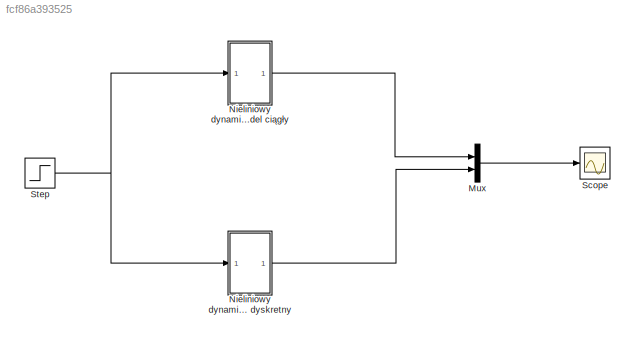
MODEL slx_fcf86a393525
KIND model
BLOCK [Mux] Mux
  DisplayOption = bar
  Inputs = 2
  Ports = [2, 1]
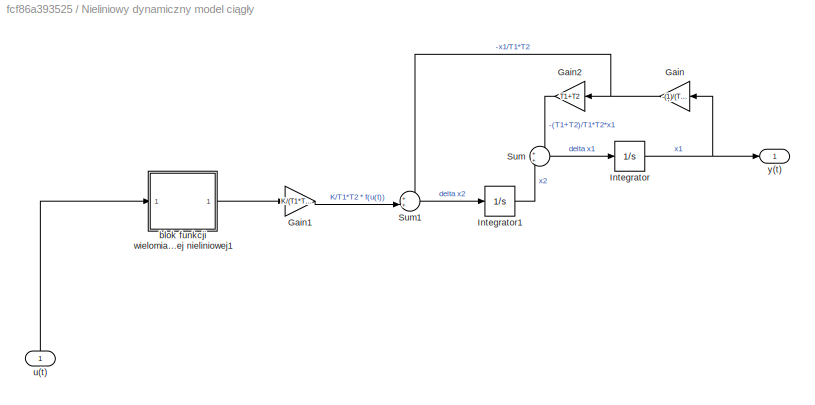
BLOCK [SubSystem] Nieliniowy dynamiczny model ciągły
  Ports = [1, 1]
  RequestExecContextInheritance = off
BLOCK [Gain] Nieliniowy dynamiczny model ciągły/Gain
  Gain = -(1)/(T1*T2)
  OutDataTypeStr = Inherit: Inherit via internal rule
  ParamDataTypeStr = Inherit: Inherit via internal rule
  SaturateOnIntegerOverflow = off
BLOCK [Gain] Nieliniowy dynamiczny model ciągły/Gain1
  Gain = K/(T1*T2)
  OutDataTypeStr = Inherit: Inherit via internal rule
  ParamDataTypeStr = Inherit: Inherit via internal rule
  SaturateOnIntegerOverflow = off
BLOCK [Gain] Nieliniowy dynamiczny model ciągły/Gain2
  Gain = T1+T2
  OutDataTypeStr = Inherit: Inherit via internal rule
  ParamDataTypeStr = Inherit: Inherit via internal rule
  SaturateOnIntegerOverflow = off
BLOCK [Integrator] Nieliniowy dynamiczny model ciągły/Integrator
  ContinuousStateAttributes = 'x1'
  InitialCondition = x1
  Ports = [1, 1]
BLOCK [Integrator] Nieliniowy dynamiczny model ciągły/Integrator1
  ContinuousStateAttributes = 'x2'
  InitialCondition = x2
  Ports = [1, 1]
BLOCK [Sum] Nieliniowy dynamiczny model ciągły/Sum
  IconShape = round
  InputSameDT = off
  OutDataTypeStr = Inherit: Inherit via internal rule
  Ports = [2, 1]
  SaturateOnIntegerOverflow = off
BLOCK [Sum] Nieliniowy dynamiczny model ciągły/Sum1
  IconShape = round
  InputSameDT = off
  Inputs = ++|
  OutDataTypeStr = Inherit: Inherit via internal rule
  Ports = [2, 1]
  SaturateOnIntegerOverflow = off
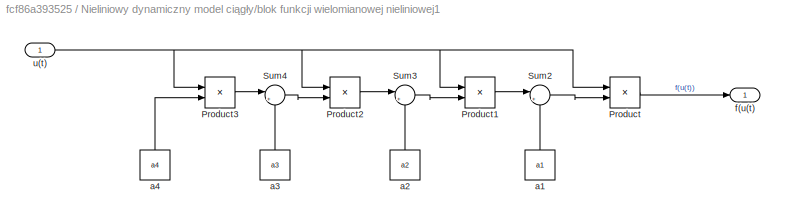
BLOCK [SubSystem] Nieliniowy dynamiczny model ciągły/blok funkcji wielomianowej nieliniowej1
  Ports = [1, 1]
  RequestExecContextInheritance = off
BLOCK [Product] Nieliniowy dynamiczny model ciągły/blok funkcji wielomianowej nieliniowej1/Product
  InputSameDT = off
  OutDataTypeStr = Inherit: Inherit via internal rule
  Ports = [2, 1]
  RndMeth = Floor
  SaturateOnIntegerOverflow = off
BLOCK [Product] Nieliniowy dynamiczny model ciągły/blok funkcji wielomianowej nieliniowej1/Product1
  InputSameDT = off
  OutDataTypeStr = Inherit: Inherit via internal rule
  Ports = [2, 1]
  RndMeth = Floor
  SaturateOnIntegerOverflow = off
BLOCK [Product] Nieliniowy dynamiczny model ciągły/blok funkcji wielomianowej nieliniowej1/Product2
  InputSameDT = off
  OutDataTypeStr = Inherit: Inherit via internal rule
  Ports = [2, 1]
  RndMeth = Floor
  SaturateOnIntegerOverflow = off
BLOCK [Product] Nieliniowy dynamiczny model ciągły/blok funkcji wielomianowej nieliniowej1/Product3
  InputSameDT = off
  OutDataTypeStr = Inherit: Inherit via internal rule
  Ports = [2, 1]
  RndMeth = Floor
  SaturateOnIntegerOverflow = off
BLOCK [Sum] Nieliniowy dynamiczny model ciągły/blok funkcji wielomianowej nieliniowej1/Sum2
  IconShape = round
  InputSameDT = off
  Inputs = |++
  OutDataTypeStr = Inherit: Inherit via internal rule
  Ports = [2, 1]
  SaturateOnIntegerOverflow = off
BLOCK [Sum] Nieliniowy dynamiczny model ciągły/blok funkcji wielomianowej nieliniowej1/Sum3
  IconShape = round
  InputSameDT = off
  Inputs = |++
  OutDataTypeStr = Inherit: Inherit via internal rule
  Ports = [2, 1]
  SaturateOnIntegerOverflow = off
BLOCK [Sum] Nieliniowy dynamiczny model ciągły/blok funkcji wielomianowej nieliniowej1/Sum4
  IconShape = round
  InputSameDT = off
  Inputs = |++
  OutDataTypeStr = Inherit: Inherit via internal rule
  Ports = [2, 1]
  SaturateOnIntegerOverflow = off
BLOCK [Constant] Nieliniowy dynamiczny model ciągły/blok funkcji wielomianowej nieliniowej1/a1
  Value = a1
BLOCK [Constant] Nieliniowy dynamiczny model ciągły/blok funkcji wielomianowej nieliniowej1/a2
  Value = a2
BLOCK [Constant] Nieliniowy dynamiczny model ciągły/blok funkcji wielomianowej nieliniowej1/a3
  Value = a3
BLOCK [Constant] Nieliniowy dynamiczny model ciągły/blok funkcji wielomianowej nieliniowej1/a4
  Value = a4
BLOCK [Outport] Nieliniowy dynamiczny model ciągły/blok funkcji wielomianowej nieliniowej1/f(u(t)
  IconDisplay = Port number
BLOCK [Inport] Nieliniowy dynamiczny model ciągły/blok funkcji wielomianowej nieliniowej1/u(t)
  IconDisplay = Port number
BLOCK [Inport] Nieliniowy dynamiczny model ciągły/u(t)
  IconDisplay = Port number
BLOCK [Outport] Nieliniowy dynamiczny model ciągły/y(t)
  IconDisplay = Port number
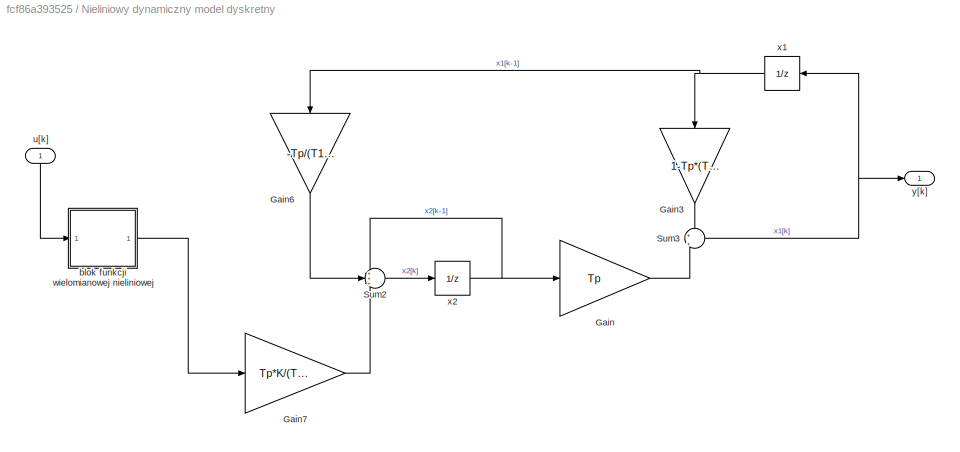
BLOCK [SubSystem] Nieliniowy dynamiczny model dyskretny
  Ports = [1, 1]
  RequestExecContextInheritance = off
BLOCK [Gain] Nieliniowy dynamiczny model dyskretny/Gain
  Gain = Tp
  OutDataTypeStr = Inherit: Inherit via internal rule
  ParamDataTypeStr = Inherit: Inherit via internal rule
  SaturateOnIntegerOverflow = off
BLOCK [Gain] Nieliniowy dynamiczny model dyskretny/Gain3
  Gain = 1-Tp*(T1+T2)/(T1*T2)
  OutDataTypeStr = Inherit: Inherit via internal rule
  ParamDataTypeStr = Inherit: Inherit via internal rule
  SaturateOnIntegerOverflow = off
BLOCK [Gain] Nieliniowy dynamiczny model dyskretny/Gain6
  Gain = -Tp/(T1*T2)
  OutDataTypeStr = Inherit: Inherit via internal rule
  ParamDataTypeStr = Inherit: Inherit via internal rule
  SaturateOnIntegerOverflow = off
BLOCK [Gain] Nieliniowy dynamiczny model dyskretny/Gain7
  Gain = Tp*K/(T1*T2)
  OutDataTypeStr = Inherit: Inherit via internal rule
  ParamDataTypeStr = Inherit: Inherit via internal rule
  SaturateOnIntegerOverflow = off
BLOCK [Sum] Nieliniowy dynamiczny model dyskretny/Sum2
  IconShape = round
  InputSameDT = off
  Inputs = +++
  OutDataTypeStr = Inherit: Inherit via internal rule
  Ports = [3, 1]
  SaturateOnIntegerOverflow = off
BLOCK [Sum] Nieliniowy dynamiczny model dyskretny/Sum3
  IconShape = round
  InputSameDT = off
  Inputs = +|+
  OutDataTypeStr = Inherit: Inherit via internal rule
  Ports = [2, 1]
  SaturateOnIntegerOverflow = off
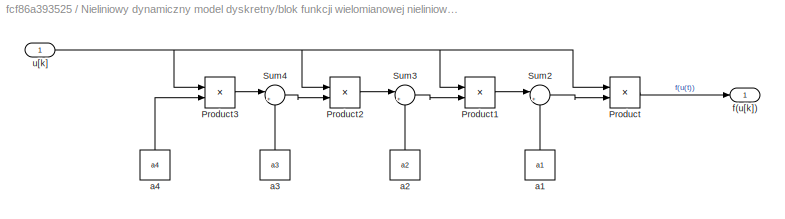
BLOCK [SubSystem] Nieliniowy dynamiczny model dyskretny/blok funkcji wielomianowej nieliniowej
  Ports = [1, 1]
  RequestExecContextInheritance = off
BLOCK [Product] Nieliniowy dynamiczny model dyskretny/blok funkcji wielomianowej nieliniowej/Product
  InputSameDT = off
  OutDataTypeStr = Inherit: Inherit via internal rule
  Ports = [2, 1]
  RndMeth = Floor
  SaturateOnIntegerOverflow = off
BLOCK [Product] Nieliniowy dynamiczny model dyskretny/blok funkcji wielomianowej nieliniowej/Product1
  InputSameDT = off
  OutDataTypeStr = Inherit: Inherit via internal rule
  Ports = [2, 1]
  RndMeth = Floor
  SaturateOnIntegerOverflow = off
BLOCK [Product] Nieliniowy dynamiczny model dyskretny/blok funkcji wielomianowej nieliniowej/Product2
  InputSameDT = off
  OutDataTypeStr = Inherit: Inherit via internal rule
  Ports = [2, 1]
  RndMeth = Floor
  SaturateOnIntegerOverflow = off
BLOCK [Product] Nieliniowy dynamiczny model dyskretny/blok funkcji wielomianowej nieliniowej/Product3
  InputSameDT = off
  OutDataTypeStr = Inherit: Inherit via internal rule
  Ports = [2, 1]
  RndMeth = Floor
  SaturateOnIntegerOverflow = off
BLOCK [Sum] Nieliniowy dynamiczny model dyskretny/blok funkcji wielomianowej nieliniowej/Sum2
  IconShape = round
  InputSameDT = off
  Inputs = |++
  OutDataTypeStr = Inherit: Inherit via internal rule
  Ports = [2, 1]
  SaturateOnIntegerOverflow = off
BLOCK [Sum] Nieliniowy dynamiczny model dyskretny/blok funkcji wielomianowej nieliniowej/Sum3
  IconShape = round
  InputSameDT = off
  Inputs = |++
  OutDataTypeStr = Inherit: Inherit via internal rule
  Ports = [2, 1]
  SaturateOnIntegerOverflow = off
BLOCK [Sum] Nieliniowy dynamiczny model dyskretny/blok funkcji wielomianowej nieliniowej/Sum4
  IconShape = round
  InputSameDT = off
  Inputs = |++
  OutDataTypeStr = Inherit: Inherit via internal rule
  Ports = [2, 1]
  SaturateOnIntegerOverflow = off
BLOCK [Constant] Nieliniowy dynamiczny model dyskretny/blok funkcji wielomianowej nieliniowej/a1
  Value = a1
BLOCK [Constant] Nieliniowy dynamiczny model dyskretny/blok funkcji wielomianowej nieliniowej/a2
  Value = a2
BLOCK [Constant] Nieliniowy dynamiczny model dyskretny/blok funkcji wielomianowej nieliniowej/a3
  Value = a3
BLOCK [Constant] Nieliniowy dynamiczny model dyskretny/blok funkcji wielomianowej nieliniowej/a4
  Value = a4
BLOCK [Outport] Nieliniowy dynamiczny model dyskretny/blok funkcji wielomianowej nieliniowej/f(u[k])
  IconDisplay = Port number
BLOCK [Inport] Nieliniowy dynamiczny model dyskretny/blok funkcji wielomianowej nieliniowej/u[k]
  IconDisplay = Port number
BLOCK [Inport] Nieliniowy dynamiczny model dyskretny/u[k]
  IconDisplay = Port number
BLOCK [UnitDelay] Nieliniowy dynamiczny model dyskretny/x1
  InitialCondition = x1
  InputProcessing = Elements as channels (sample based)
  SampleTime = Tp
BLOCK [UnitDelay] Nieliniowy dynamiczny model dyskretny/x2
  InitialCondition = x2
  InputProcessing = Elements as channels (sample based)
  SampleTime = Tp
BLOCK [Outport] Nieliniowy dynamiczny model dyskretny/y[k]
  IconDisplay = Port number
BLOCK [Scope] Scope
  Floating = off
  NumInputPorts = 1
  Ports = [1]
  ShowLegends = off
  YMax = 0
  YMin = -7
  ZoomMode = xonly
BLOCK [Step] Step
  SampleTime = 0
LINE Mux:1 -> Scope:1
LINE Nieliniowy dynamiczny model ciągły/Gain1:1 -> Nieliniowy dynamiczny model ciągły/Sum1:2
LINE Nieliniowy dynamiczny model ciągły/Gain2:1 -> Nieliniowy dynamiczny model ciągły/Sum:1
NET Nieliniowy dynamiczny model ciągły/Gain:1 -> Nieliniowy dynamiczny model ciągły/Gain2:1, Nieliniowy dynamiczny model ciągły/Sum1:1
LINE Nieliniowy dynamiczny model ciągły/Integrator1:1 -> Nieliniowy dynamiczny model ciągły/Sum:2
NET Nieliniowy dynamiczny model ciągły/Integrator:1 -> Nieliniowy dynamiczny model ciągły/Gain:1, Nieliniowy dynamiczny model ciągły/y(t):1
LINE Nieliniowy dynamiczny model ciągły/Sum1:1 -> Nieliniowy dynamiczny model ciągły/Integrator1:1
LINE Nieliniowy dynamiczny model ciągły/Sum:1 -> Nieliniowy dynamiczny model ciągły/Integrator:1
LINE Nieliniowy dynamiczny model ciągły/blok funkcji wielomianowej nieliniowej1/Product1:1 -> Nieliniowy dynamiczny model ciągły/blok funkcji wielomianowej nieliniowej1/Sum2:1
LINE Nieliniowy dynamiczny model ciągły/blok funkcji wielomianowej nieliniowej1/Product2:1 -> Nieliniowy dynamiczny model ciągły/blok funkcji wielomianowej nieliniowej1/Sum3:1
LINE Nieliniowy dynamiczny model ciągły/blok funkcji wielomianowej nieliniowej1/Product3:1 -> Nieliniowy dynamiczny model ciągły/blok funkcji wielomianowej nieliniowej1/Sum4:1
LINE Nieliniowy dynamiczny model ciągły/blok funkcji wielomianowej nieliniowej1/Product:1 -> Nieliniowy dynamiczny model ciągły/blok funkcji wielomianowej nieliniowej1/f(u(t):1
LINE Nieliniowy dynamiczny model ciągły/blok funkcji wielomianowej nieliniowej1/Sum2:1 -> Nieliniowy dynamiczny model ciągły/blok funkcji wielomianowej nieliniowej1/Product:2
LINE Nieliniowy dynamiczny model ciągły/blok funkcji wielomianowej nieliniowej1/Sum3:1 -> Nieliniowy dynamiczny model ciągły/blok funkcji wielomianowej nieliniowej1/Product1:2
LINE Nieliniowy dynamiczny model ciągły/blok funkcji wielomianowej nieliniowej1/Sum4:1 -> Nieliniowy dynamiczny model ciągły/blok funkcji wielomianowej nieliniowej1/Product2:2
LINE Nieliniowy dynamiczny model ciągły/blok funkcji wielomianowej nieliniowej1/a1:1 -> Nieliniowy dynamiczny model ciągły/blok funkcji wielomianowej nieliniowej1/Sum2:2
LINE Nieliniowy dynamiczny model ciągły/blok funkcji wielomianowej nieliniowej1/a2:1 -> Nieliniowy dynamiczny model ciągły/blok funkcji wielomianowej nieliniowej1/Sum3:2
LINE Nieliniowy dynamiczny model ciągły/blok funkcji wielomianowej nieliniowej1/a3:1 -> Nieliniowy dynamiczny model ciągły/blok funkcji wielomianowej nieliniowej1/Sum4:2
LINE Nieliniowy dynamiczny model ciągły/blok funkcji wielomianowej nieliniowej1/a4:1 -> Nieliniowy dynamiczny model ciągły/blok funkcji wielomianowej nieliniowej1/Product3:2
NET Nieliniowy dynamiczny model ciągły/blok funkcji wielomianowej nieliniowej1/u(t):1 -> Nieliniowy dynamiczny model ciągły/blok funkcji wielomianowej nieliniowej1/Product1:1, Nieliniowy dynamiczny model ciągły/blok funkcji wielomianowej nieliniowej1/Product2:1, Nieliniowy dynamiczny model ciągły/blok funkcji wielomianowej nieliniowej1/Product3:1, Nieliniowy dynamiczny model ciągły/blok funkcji wielomianowej nieliniowej1/Product:1
LINE Nieliniowy dynamiczny model ciągły/blok funkcji wielomianowej nieliniowej1:1 -> Nieliniowy dynamiczny model ciągły/Gain1:1
LINE Nieliniowy dynamiczny model ciągły/u(t):1 -> Nieliniowy dynamiczny model ciągły/blok funkcji wielomianowej nieliniowej1:1
LINE Nieliniowy dynamiczny model ciągły:1 -> Mux:1
LINE Nieliniowy dynamiczny model dyskretny/Gain3:1 -> Nieliniowy dynamiczny model dyskretny/Sum3:1
LINE Nieliniowy dynamiczny model dyskretny/Gain6:1 -> Nieliniowy dynamiczny model dyskretny/Sum2:2
LINE Nieliniowy dynamiczny model dyskretny/Gain7:1 -> Nieliniowy dynamiczny model dyskretny/Sum2:3
LINE Nieliniowy dynamiczny model dyskretny/Gain:1 -> Nieliniowy dynamiczny model dyskretny/Sum3:2
LINE Nieliniowy dynamiczny model dyskretny/Sum2:1 -> Nieliniowy dynamiczny model dyskretny/x2:1
NET Nieliniowy dynamiczny model dyskretny/Sum3:1 -> Nieliniowy dynamiczny model dyskretny/x1:1, Nieliniowy dynamiczny model dyskretny/y[k]:1
LINE Nieliniowy dynamiczny model dyskretny/blok funkcji wielomianowej nieliniowej/Product1:1 -> Nieliniowy dynamiczny model dyskretny/blok funkcji wielomianowej nieliniowej/Sum2:1
LINE Nieliniowy dynamiczny model dyskretny/blok funkcji wielomianowej nieliniowej/Product2:1 -> Nieliniowy dynamiczny model dyskretny/blok funkcji wielomianowej nieliniowej/Sum3:1
LINE Nieliniowy dynamiczny model dyskretny/blok funkcji wielomianowej nieliniowej/Product3:1 -> Nieliniowy dynamiczny model dyskretny/blok funkcji wielomianowej nieliniowej/Sum4:1
LINE Nieliniowy dynamiczny model dyskretny/blok funkcji wielomianowej nieliniowej/Product:1 -> Nieliniowy dynamiczny model dyskretny/blok funkcji wielomianowej nieliniowej/f(u[k]):1
LINE Nieliniowy dynamiczny model dyskretny/blok funkcji wielomianowej nieliniowej/Sum2:1 -> Nieliniowy dynamiczny model dyskretny/blok funkcji wielomianowej nieliniowej/Product:2
LINE Nieliniowy dynamiczny model dyskretny/blok funkcji wielomianowej nieliniowej/Sum3:1 -> Nieliniowy dynamiczny model dyskretny/blok funkcji wielomianowej nieliniowej/Product1:2
LINE Nieliniowy dynamiczny model dyskretny/blok funkcji wielomianowej nieliniowej/Sum4:1 -> Nieliniowy dynamiczny model dyskretny/blok funkcji wielomianowej nieliniowej/Product2:2
LINE Nieliniowy dynamiczny model dyskretny/blok funkcji wielomianowej nieliniowej/a1:1 -> Nieliniowy dynamiczny model dyskretny/blok funkcji wielomianowej nieliniowej/Sum2:2
LINE Nieliniowy dynamiczny model dyskretny/blok funkcji wielomianowej nieliniowej/a2:1 -> Nieliniowy dynamiczny model dyskretny/blok funkcji wielomianowej nieliniowej/Sum3:2
LINE Nieliniowy dynamiczny model dyskretny/blok funkcji wielomianowej nieliniowej/a3:1 -> Nieliniowy dynamiczny model dyskretny/blok funkcji wielomianowej nieliniowej/Sum4:2
LINE Nieliniowy dynamiczny model dyskretny/blok funkcji wielomianowej nieliniowej/a4:1 -> Nieliniowy dynamiczny model dyskretny/blok funkcji wielomianowej nieliniowej/Product3:2
NET Nieliniowy dynamiczny model dyskretny/blok funkcji wielomianowej nieliniowej/u[k]:1 -> Nieliniowy dynamiczny model dyskretny/blok funkcji wielomianowej nieliniowej/Product1:1, Nieliniowy dynamiczny model dyskretny/blok funkcji wielomianowej nieliniowej/Product2:1, Nieliniowy dynamiczny model dyskretny/blok funkcji wielomianowej nieliniowej/Product3:1, Nieliniowy dynamiczny model dyskretny/blok funkcji wielomianowej nieliniowej/Product:1
LINE Nieliniowy dynamiczny model dyskretny/blok funkcji wielomianowej nieliniowej:1 -> Nieliniowy dynamiczny model dyskretny/Gain7:1
LINE Nieliniowy dynamiczny model dyskretny/u[k]:1 -> Nieliniowy dynamiczny model dyskretny/blok funkcji wielomianowej nieliniowej:1
NET Nieliniowy dynamiczny model dyskretny/x1:1 -> Nieliniowy dynamiczny model dyskretny/Gain3:1, Nieliniowy dynamiczny model dyskretny/Gain6:1
NET Nieliniowy dynamiczny model dyskretny/x2:1 -> Nieliniowy dynamiczny model dyskretny/Gain:1, Nieliniowy dynamiczny model dyskretny/Sum2:1
LINE Nieliniowy dynamiczny model dyskretny:1 -> Mux:2
NET Step:1 -> Nieliniowy dynamiczny model ciągły:1, Nieliniowy dynamiczny model dyskretny:1
note: NET lines group one-source signal fan-out (src -> all destinations, sorted); 1:1 wires keep LINE
